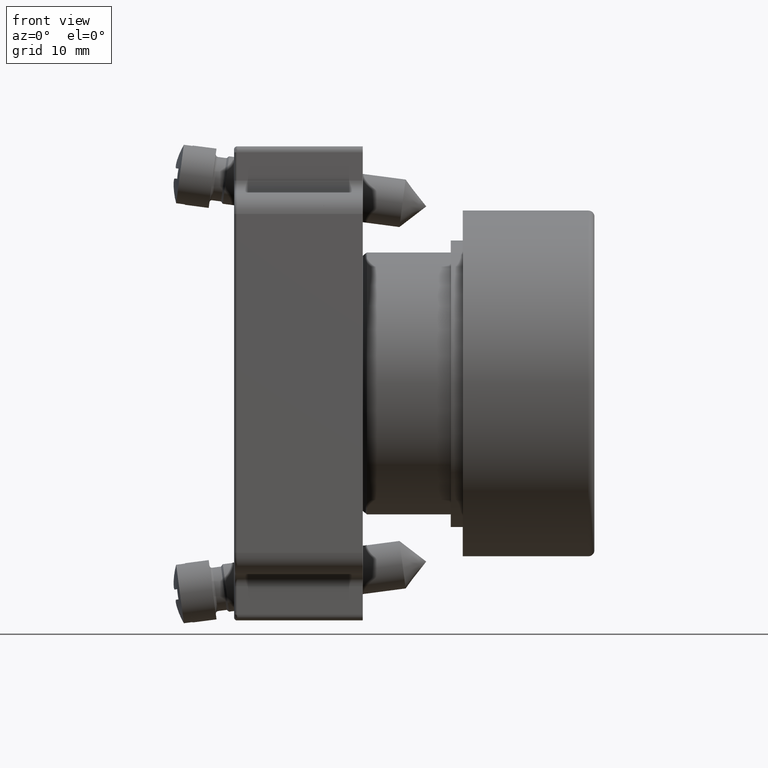
[diagram: clean part render]
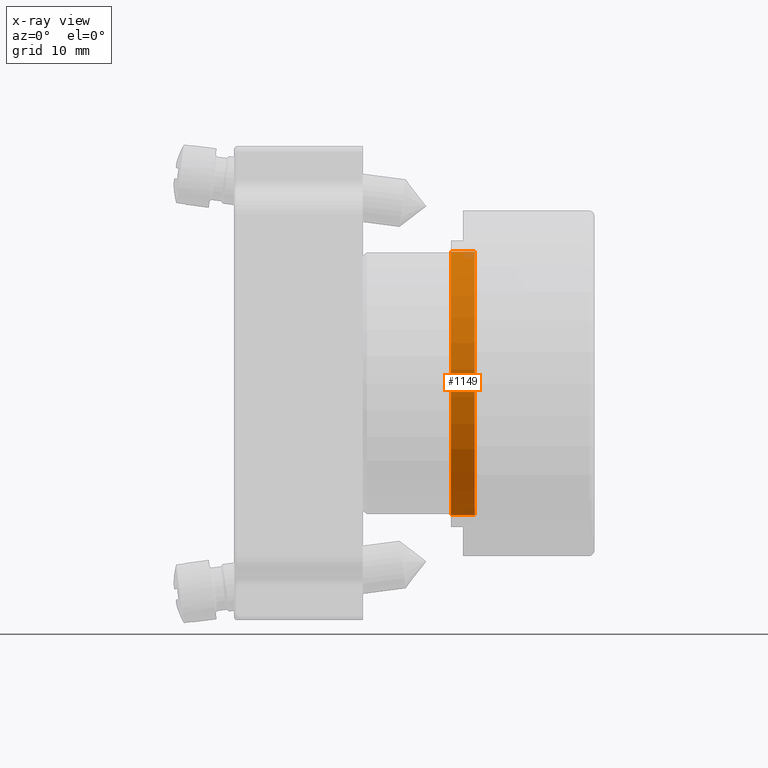
[diagram: x-ray — body ghosted, one internal face saturated and labeled with its STEP entity id]
A machine part, front view, then the same camera in x-ray: the body is ghosted and one INTERNAL B-rep face — a face not visible from any outside direction — is saturated and labeled: STEP entity #1149.
In plain terms, the highlighted cylindrical surface (bore or boss wall) has radius 11 mm, axis along (1, 0, 0).
Its self-contained STEP definition (entity closure, byte-faithful):
#1122=CARTESIAN_POINT('',(-5.752753892245464,-0.917992701064351,0.0));
#1123=DIRECTION('',(0.0,0.0,1.0));
#1124=DIRECTION('',(-1.0,0.0,0.0));
#1125=AXIS2_PLACEMENT_3D('',#1122,#1123,#1124);
#1126=CYLINDRICAL_SURFACE('',#1125,11.0);
#1127=CARTESIAN_POINT('',(5.247246107754537,-0.917992701064349,2.0));
#1128=VERTEX_POINT('',#1127);
#1129=CARTESIAN_POINT('',(-5.752753892245464,-0.917992701064351,2.0));
#1130=DIRECTION('',(0.0,0.0,-1.0));
#1131=DIRECTION('',(-1.0,0.0,0.0));
#1132=AXIS2_PLACEMENT_3D('',#1129,#1130,#1131);
#1133=CIRCLE('',#1132,11.0);
#1134=EDGE_CURVE('',#1128,#1128,#1133,.T.);
#1135=ORIENTED_EDGE('',*,*,#1134,.F.);
#1136=EDGE_LOOP('',(#1135));
#1137=FACE_OUTER_BOUND('',#1136,.T.);
#1138=CARTESIAN_POINT('',(5.247246107754537,-0.917992701064349,0.0));
#1139=VERTEX_POINT('',#1138);
#1140=CARTESIAN_POINT('',(-5.752753892245464,-0.917992701064351,0.0));
#1141=DIRECTION('',(0.0,0.0,1.0));
#1142=DIRECTION('',(-1.0,0.0,0.0));
#1143=AXIS2_PLACEMENT_3D('',#1140,#1141,#1142);
#1144=CIRCLE('',#1143,11.0);
#1145=EDGE_CURVE('',#1139,#1139,#1144,.T.);
#1146=ORIENTED_EDGE('',*,*,#1145,.F.);
#1147=EDGE_LOOP('',(#1146));
#1148=FACE_BOUND('',#1147,.T.);
#1149=ADVANCED_FACE('',(#1137,#1148),#1126,.F.);